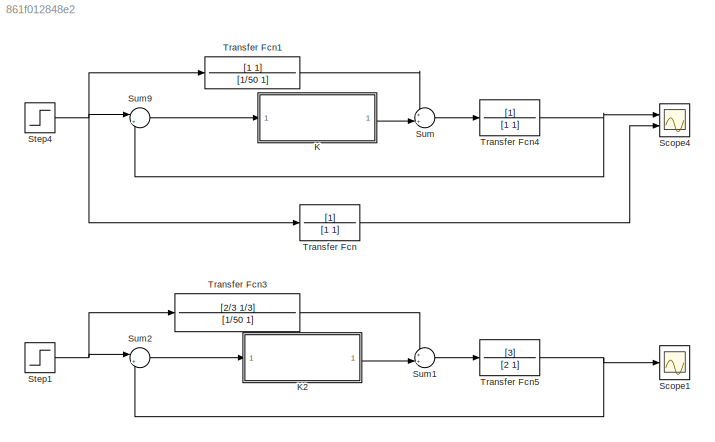
MODEL slx_861f012848e2
KIND model
CONFIG AbsTol = auto
CONFIG EnableMultiTasking = off
CONFIG FixedStep = 0.001
CONFIG MaxStep = auto
CONFIG MinStep = auto
CONFIG RelTol = 1e-3
CONFIG SampleTimeConstraint = Unconstrained
CONFIG Solver = FixedStepAuto
CONFIG SolverName = FixedStepAuto
CONFIG StartTime = 0.0
CONFIG StopTime = 4
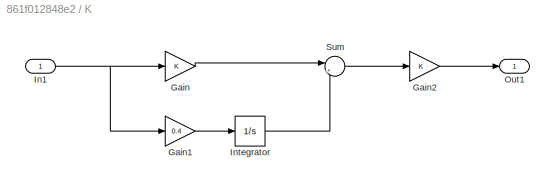
BLOCK [SubSystem] K
  Ports = [1, 1]
  RequestExecContextInheritance = off
BLOCK [Gain] K/Gain
  OutDataTypeStr = Inherit: Inherit via internal rule
  ParamDataTypeStr = Inherit: Inherit via internal rule
  SaturateOnIntegerOverflow = off
BLOCK [Gain] K/Gain1
  Gain = 0.4
  OutDataTypeStr = Inherit: Inherit via internal rule
  ParamDataTypeStr = Inherit: Inherit via internal rule
  SaturateOnIntegerOverflow = off
BLOCK [Gain] K/Gain2
  OutDataTypeStr = Inherit: Inherit via internal rule
  ParamDataTypeStr = Inherit: Inherit via internal rule
  SaturateOnIntegerOverflow = off
BLOCK [Inport] K/In1
  IconDisplay = Port number
BLOCK [Integrator] K/Integrator
  Ports = [1, 1]
BLOCK [Outport] K/Out1
  IconDisplay = Port number
BLOCK [Sum] K/Sum
  IconShape = round
  InputSameDT = off
  Inputs = |++
  OutDataTypeStr = Inherit: Inherit via internal rule
  Ports = [2, 1]
  SaturateOnIntegerOverflow = off
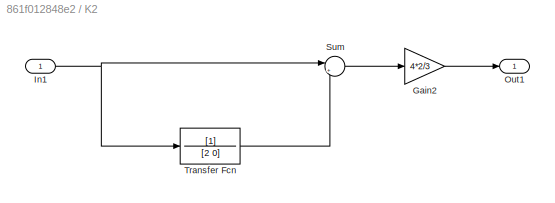
BLOCK [SubSystem] K2
  Ports = [1, 1]
  RequestExecContextInheritance = off
BLOCK [Gain] K2/Gain2
  Gain = 4*2/3
  OutDataTypeStr = Inherit: Inherit via internal rule
  ParamDataTypeStr = Inherit: Inherit via internal rule
  SaturateOnIntegerOverflow = off
BLOCK [Inport] K2/In1
  IconDisplay = Port number
BLOCK [Outport] K2/Out1
  IconDisplay = Port number
BLOCK [Sum] K2/Sum
  IconShape = round
  InputSameDT = off
  Inputs = |++
  OutDataTypeStr = Inherit: Inherit via internal rule
  Ports = [2, 1]
  SaturateOnIntegerOverflow = off
BLOCK [TransferFcn] K2/Transfer Fcn
  Denominator = [2 0]
BLOCK [Scope] Scope1
  Floating = off
  NumInputPorts = 1
  Ports = [1]
  ScopeSpecificationString = Simulink.scopes.TimeScopeBlockCfg('CurrentConfiguration', extmgr.ConfigurationSet(extmgr.Configuration('Core','General UI',true),extmgr.Configuration('Core','Source UI',true),extmgr.Configuration('Sources','WiredSimulink',true,'DataLoggingVariableName','ScopeData1'),extmgr.Configuration('Visuals','Time Domain',true,'SerializedDisplays',{struct('MinYLimReal','-0.125','MaxYLimReal','1.125','YLabelRe...<+1459ch>
BLOCK [Scope] Scope4
  Floating = off
  NumInputPorts = 2
  Ports = [2]
  ScopeSpecificationString = Simulink.scopes.TimeScopeBlockCfg('CurrentConfiguration', extmgr.ConfigurationSet(extmgr.Configuration('Core','General UI',true),extmgr.Configuration('Core','Source UI',true),extmgr.Configuration('Sources','WiredSimulink',true,'DataLoggingVariableName','ScopeData1'),extmgr.Configuration('Visuals','Time Domain',true,'SerializedDisplays',{struct('MinYLimReal','1.0095','MaxYLimReal','1.02091','YLabel...<+1455ch>
BLOCK [Step] Step1
  SampleTime = 0
BLOCK [Step] Step4
  SampleTime = 0
BLOCK [Sum] Sum
  IconShape = round
  InputSameDT = off
  Inputs = ++|
  OutDataTypeStr = Inherit: Inherit via internal rule
  Ports = [2, 1]
  SaturateOnIntegerOverflow = off
BLOCK [Sum] Sum1
  IconShape = round
  InputSameDT = off
  Inputs = ++|
  OutDataTypeStr = Inherit: Inherit via internal rule
  Ports = [2, 1]
  SaturateOnIntegerOverflow = off
BLOCK [Sum] Sum2
  IconShape = round
  InputSameDT = off
  Inputs = |+-
  OutDataTypeStr = Inherit: Inherit via internal rule
  Ports = [2, 1]
  SaturateOnIntegerOverflow = off
BLOCK [Sum] Sum9
  IconShape = round
  InputSameDT = off
  Inputs = |+-
  OutDataTypeStr = Inherit: Inherit via internal rule
  Ports = [2, 1]
  SaturateOnIntegerOverflow = off
BLOCK [TransferFcn] Transfer Fcn
  Denominator = [1 1]
BLOCK [TransferFcn] Transfer Fcn1
  Denominator = [1/50 1]
  Numerator = [1 1]
BLOCK [TransferFcn] Transfer Fcn3
  Denominator = [1/50 1]
  Numerator = [2/3 1/3]
BLOCK [TransferFcn] Transfer Fcn4
  Denominator = [1 1]
BLOCK [TransferFcn] Transfer Fcn5
  Denominator = [2 1]
  Numerator = [3]
LINE K/Gain1:1 -> K/Integrator:1
LINE K/Gain2:1 -> K/Out1:1
LINE K/Gain:1 -> K/Sum:1
NET K/In1:1 -> K/Gain1:1, K/Gain:1
LINE K/Integrator:1 -> K/Sum:2
LINE K/Sum:1 -> K/Gain2:1
LINE K2/Gain2:1 -> K2/Out1:1
NET K2/In1:1 -> K2/Sum:1, K2/Transfer Fcn:1
LINE K2/Sum:1 -> K2/Gain2:1
LINE K2/Transfer Fcn:1 -> K2/Sum:2
LINE K2:1 -> Sum1:2
LINE K:1 -> Sum:2
NET Step1:1 -> Sum2:1, Transfer Fcn3:1
NET Step4:1 -> Sum9:1, Transfer Fcn1:1, Transfer Fcn:1
LINE Sum1:1 -> Transfer Fcn5:1
LINE Sum2:1 -> K2:1
LINE Sum9:1 -> K:1
LINE Sum:1 -> Transfer Fcn4:1
LINE Transfer Fcn1:1 -> Sum:1
LINE Transfer Fcn3:1 -> Sum1:1
NET Transfer Fcn4:1 -> Scope4:1, Sum9:2
NET Transfer Fcn5:1 -> Scope1:1, Sum2:2
LINE Transfer Fcn:1 -> Scope4:2
note: NET lines group one-source signal fan-out (src -> all destinations, sorted); 1:1 wires keep LINE
